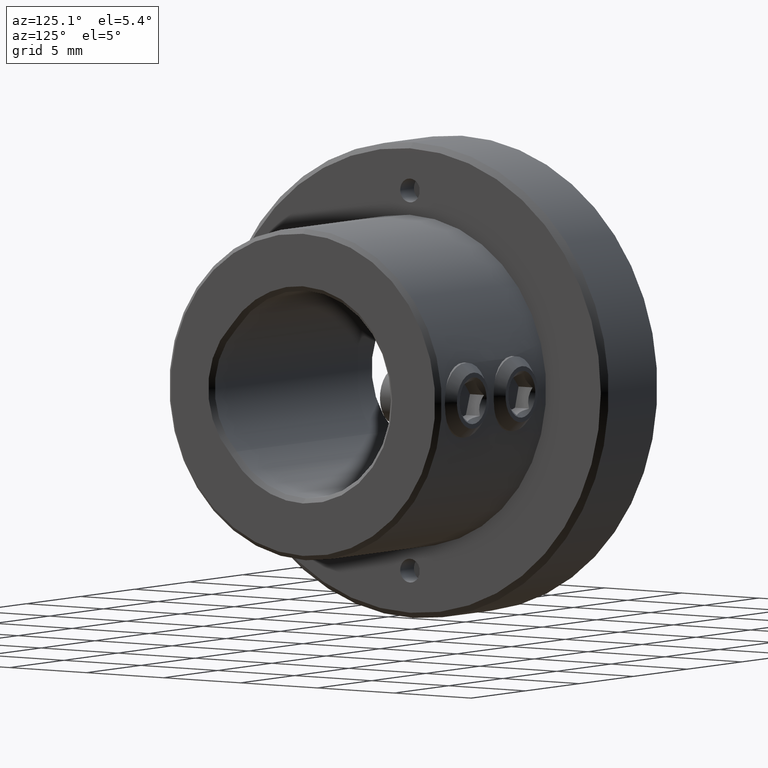
[diagram: clean part render]
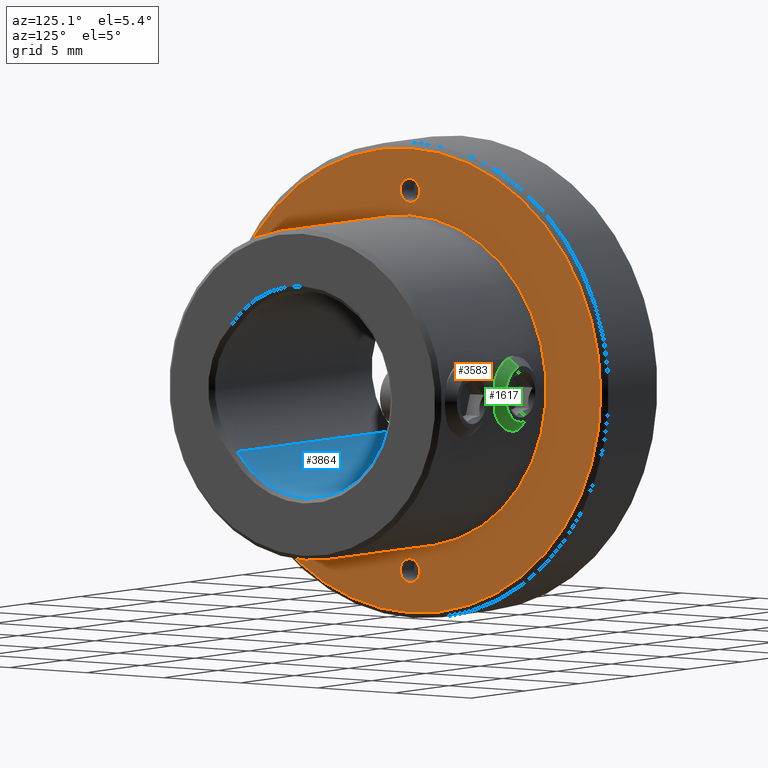
[diagram: same view with three faces highlighted in distinct colors, each labeled with its STEP entity id]
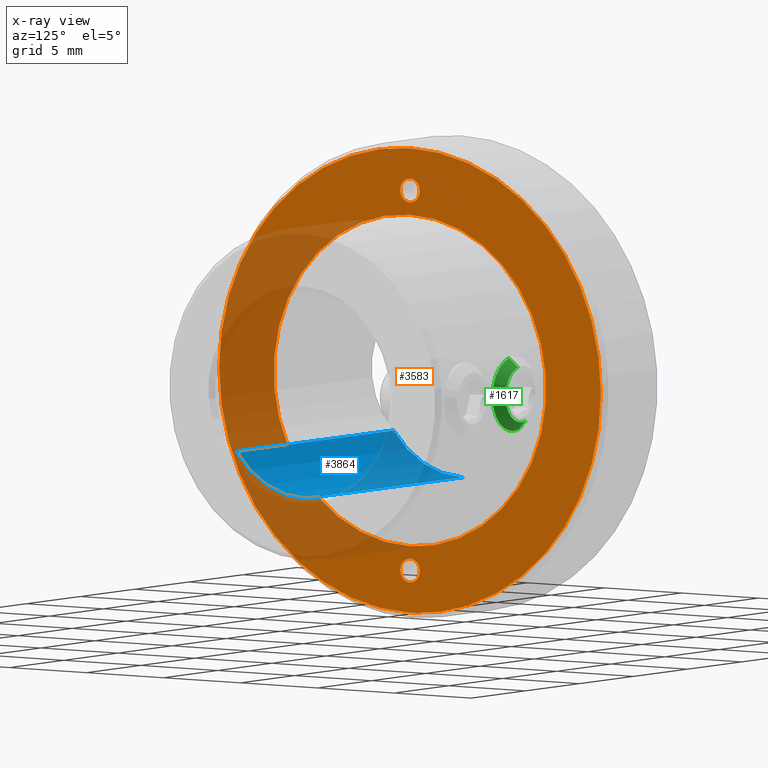
[diagram: x-ray of the same camera — body ghosted, the three highlighted faces saturated]
A machine part, auxiliary view with three faces highlighted in distinct colors.
The next image is the same camera in x-ray (body ghosted, the three faces saturated) — at least one of them is partly hidden behind the body in this view.
Their STEP definitions:

[orange] entity #3583 — the highlighted planar face has unit normal (1, 0, 0).
#24 = FACE_BOUND ( 'NONE', #1247, .T. ) ;
#126 = EDGE_CURVE ( 'NONE', #4250, #1879, #2039, .T. ) ;
#326 = FACE_BOUND ( 'NONE', #1625, .T. ) ;
#359 = CIRCLE ( 'NONE', #3192, 8.850000000000001421 ) ;
#371 = VERTEX_POINT ( 'NONE', #1809 ) ;
#511 = CARTESIAN_POINT ( 'NONE',  ( 5.099999999999999645, -1.243016501134563686E-15, 9.515000000000000568 ) ) ;
#529 = CARTESIAN_POINT ( 'NONE',  ( 5.099999999999999645, -1.243016501134563686E-15, -10.15000000000000036 ) ) ;
#573 = DIRECTION ( 'NONE',  ( 1.000000000000000000, 0.000000000000000000, 0.000000000000000000 ) ) ;
#669 = EDGE_CURVE ( 'NONE', #1879, #4250, #2381, .T. ) ;
#729 = DIRECTION ( 'NONE',  ( 0.000000000000000000, 0.000000000000000000, -1.000000000000000000 ) ) ;
#742 = ORIENTED_EDGE ( 'NONE', *, *, #854, .F. ) ;
#765 = DIRECTION ( 'NONE',  ( 1.000000000000000000, 0.000000000000000000, 0.000000000000000000 ) ) ;
#770 = FACE_BOUND ( 'NONE', #3748, .T. ) ;
#813 = DIRECTION ( 'NONE',  ( 0.000000000000000000, 0.000000000000000000, -1.000000000000000000 ) ) ;
#854 = EDGE_CURVE ( 'NONE', #4957, #371, #4730, .T. ) ;
#945 = EDGE_CURVE ( 'NONE', #2905, #1751, #1800, .T. ) ;
#972 = EDGE_CURVE ( 'NONE', #1751, #2905, #359, .T. ) ;
#980 = DIRECTION ( 'NONE',  ( 0.000000000000000000, 0.000000000000000000, -1.000000000000000000 ) ) ;
#1138 = DIRECTION ( 'NONE',  ( 1.000000000000000000, 0.000000000000000000, 0.000000000000000000 ) ) ;
#1172 = DIRECTION ( 'NONE',  ( 0.000000000000000000, 0.000000000000000000, -1.000000000000000000 ) ) ;
#1226 = EDGE_CURVE ( 'NONE', #2494, #3503, #4880, .T. ) ;
#1241 = CIRCLE ( 'NONE', #4009, 0.6350000000000001199 ) ;
#1244 = CARTESIAN_POINT ( 'NONE',  ( 5.099999999999999645, -1.243016501134563686E-15, 10.15000000000000036 ) ) ;
#1247 = EDGE_LOOP ( 'NONE', ( #3447, #2083 ) ) ;
#1279 = CARTESIAN_POINT ( 'NONE',  ( 5.099999999999999645, 0.000000000000000000, 12.40000000000000391 ) ) ;
#1434 = CARTESIAN_POINT ( 'NONE',  ( 5.100000000000000533, 0.000000000000000000, 0.000000000000000000 ) ) ;
#1552 = CARTESIAN_POINT ( 'NONE',  ( 5.099999999999999645, 0.000000000000000000, 0.000000000000000000 ) ) ;
#1563 = AXIS2_PLACEMENT_3D ( 'NONE', #2634, #1138, #2252 ) ;
#1625 = EDGE_LOOP ( 'NONE', ( #742, #4729 ) ) ;
#1751 = VERTEX_POINT ( 'NONE', #3551 ) ;
#1800 = CIRCLE ( 'NONE', #2212, 8.850000000000001421 ) ;
#1809 = CARTESIAN_POINT ( 'NONE',  ( 5.099999999999999645, -1.165251429388706647E-15, 10.78500000000000192 ) ) ;
#1810 = DIRECTION ( 'NONE',  ( -1.000000000000000000, -0.000000000000000000, -0.000000000000000000 ) ) ;
#1827 = CIRCLE ( 'NONE', #2485, 0.6350000000000001199 ) ;
#1879 = VERTEX_POINT ( 'NONE', #1279 ) ;
#1999 = EDGE_CURVE ( 'NONE', #3503, #2494, #1827, .T. ) ;
#2039 = CIRCLE ( 'NONE', #3834, 12.40000000000000391 ) ;
#2083 = ORIENTED_EDGE ( 'NONE', *, *, #1999, .F. ) ;
#2212 = AXIS2_PLACEMENT_3D ( 'NONE', #1434, #3754, #980 ) ;
#2252 = DIRECTION ( 'NONE',  ( 0.000000000000000000, 0.000000000000000000, -1.000000000000000000 ) ) ;
#2270 = DIRECTION ( 'NONE',  ( 1.000000000000000000, 0.000000000000000000, 0.000000000000000000 ) ) ;
#2318 = DIRECTION ( 'NONE',  ( 1.000000000000000000, 0.000000000000000000, 0.000000000000000000 ) ) ;
#2381 = CIRCLE ( 'NONE', #3762, 12.40000000000000391 ) ;
#2485 = AXIS2_PLACEMENT_3D ( 'NONE', #529, #2523, #2926 ) ;
#2494 = VERTEX_POINT ( 'NONE', #3318 ) ;
#2503 = CARTESIAN_POINT ( 'NONE',  ( 5.099999999999999645, 1.536931732929928397E-15, -12.40000000000000391 ) ) ;
#2523 = DIRECTION ( 'NONE',  ( 1.000000000000000000, 0.000000000000000000, 0.000000000000000000 ) ) ;
#2634 = CARTESIAN_POINT ( 'NONE',  ( 5.099999999999999645, -1.243016501134563686E-15, 10.15000000000000036 ) ) ;
#2716 = CARTESIAN_POINT ( 'NONE',  ( 5.099999999999999645, 0.000000000000000000, 0.000000000000000000 ) ) ;
#2879 = CARTESIAN_POINT ( 'NONE',  ( 5.099999999999999645, 0.000000000000000000, 0.000000000000000000 ) ) ;
#2905 = VERTEX_POINT ( 'NONE', #3182 ) ;
#2926 = DIRECTION ( 'NONE',  ( 0.000000000000000000, 0.000000000000000000, -1.000000000000000000 ) ) ;
#2982 = DIRECTION ( 'NONE',  ( 0.000000000000000000, 0.000000000000000000, -1.000000000000000000 ) ) ;
#3022 = AXIS2_PLACEMENT_3D ( 'NONE', #1552, #2318, #3877 ) ;
#3050 = EDGE_LOOP ( 'NONE', ( #4450, #4299 ) ) ;
#3082 = FACE_OUTER_BOUND ( 'NONE', #3050, .T. ) ;
#3182 = CARTESIAN_POINT ( 'NONE',  ( 5.100000000000000533, 0.000000000000000000, -8.850000000000001421 ) ) ;
#3192 = AXIS2_PLACEMENT_3D ( 'NONE', #4870, #1810, #2982 ) ;
#3214 = EDGE_CURVE ( 'NONE', #371, #4957, #1241, .T. ) ;
#3284 = ORIENTED_EDGE ( 'NONE', *, *, #972, .T. ) ;
#3318 = CARTESIAN_POINT ( 'NONE',  ( 5.099999999999999645, -1.243016501134563686E-15, -10.78500000000000192 ) ) ;
#3346 = AXIS2_PLACEMENT_3D ( 'NONE', #4255, #2270, #729 ) ;
#3423 = PLANE ( 'NONE',  #3022 ) ;
#3447 = ORIENTED_EDGE ( 'NONE', *, *, #1226, .F. ) ;
#3503 = VERTEX_POINT ( 'NONE', #3802 ) ;
#3551 = CARTESIAN_POINT ( 'NONE',  ( 5.100000000000000533, 1.083812417245407876E-15, 8.850000000000001421 ) ) ;
#3583 = ADVANCED_FACE ( 'NONE', ( #24, #326, #3082, #770 ), #3423, .T. ) ;
#3748 = EDGE_LOOP ( 'NONE', ( #4003, #3284 ) ) ;
#3754 = DIRECTION ( 'NONE',  ( -1.000000000000000000, -0.000000000000000000, -0.000000000000000000 ) ) ;
#3762 = AXIS2_PLACEMENT_3D ( 'NONE', #2879, #573, #4005 ) ;
#3802 = CARTESIAN_POINT ( 'NONE',  ( 5.099999999999999645, -1.165251429388706647E-15, -9.515000000000000568 ) ) ;
#3834 = AXIS2_PLACEMENT_3D ( 'NONE', #2716, #765, #1172 ) ;
#3877 = DIRECTION ( 'NONE',  ( 0.000000000000000000, 0.000000000000000000, -1.000000000000000000 ) ) ;
#4003 = ORIENTED_EDGE ( 'NONE', *, *, #945, .T. ) ;
#4005 = DIRECTION ( 'NONE',  ( 0.000000000000000000, 0.000000000000000000, -1.000000000000000000 ) ) ;
#4009 = AXIS2_PLACEMENT_3D ( 'NONE', #1244, #4346, #813 ) ;
#4250 = VERTEX_POINT ( 'NONE', #2503 ) ;
#4255 = CARTESIAN_POINT ( 'NONE',  ( 5.099999999999999645, -1.243016501134563686E-15, -10.15000000000000036 ) ) ;
#4299 = ORIENTED_EDGE ( 'NONE', *, *, #126, .T. ) ;
#4346 = DIRECTION ( 'NONE',  ( 1.000000000000000000, 0.000000000000000000, 0.000000000000000000 ) ) ;
#4450 = ORIENTED_EDGE ( 'NONE', *, *, #669, .T. ) ;
#4729 = ORIENTED_EDGE ( 'NONE', *, *, #3214, .F. ) ;
#4730 = CIRCLE ( 'NONE', #1563, 0.6350000000000001199 ) ;
#4870 = CARTESIAN_POINT ( 'NONE',  ( 5.100000000000000533, 0.000000000000000000, 0.000000000000000000 ) ) ;
#4880 = CIRCLE ( 'NONE', #3346, 0.6350000000000001199 ) ;
#4957 = VERTEX_POINT ( 'NONE', #511 ) ;

[blue] entity #3864 — the highlighted cylindrical surface (partial cylindrical patch) has radius 5.55 mm, axis along (-1, -0, -0).
#50 = LINE ( 'NONE', #1201, #3494 ) ;
#282 = CARTESIAN_POINT ( 'NONE',  ( 7.500000000000000000, -4.468750000000002665, -3.291317887640144324 ) ) ;
#351 = DIRECTION ( 'NONE',  ( -1.000000000000000000, -0.000000000000000000, -0.000000000000000000 ) ) ;
#579 = LINE ( 'NONE', #282, #4738 ) ;
#603 = AXIS2_PLACEMENT_3D ( 'NONE', #1546, #1070, #720 ) ;
#675 = DIRECTION ( 'NONE',  ( -1.000000000000000000, 0.000000000000000000, 0.000000000000000000 ) ) ;
#720 = DIRECTION ( 'NONE',  ( 0.000000000000000000, 0.000000000000000000, -1.000000000000000000 ) ) ;
#760 = CIRCLE ( 'NONE', #603, 5.549999999999999822 ) ;
#905 = CARTESIAN_POINT ( 'NONE',  ( 0.2500000000000071609, -4.468750000000002665, -3.291317887640144324 ) ) ;
#1070 = DIRECTION ( 'NONE',  ( 1.000000000000000000, -0.000000000000000000, -0.000000000000000000 ) ) ;
#1201 = CARTESIAN_POINT ( 'NONE',  ( 15.00000000000000000, 6.796789735267810781E-16, -5.549999999999999822 ) ) ;
#1321 = ORIENTED_EDGE ( 'NONE', *, *, #2493, .T. ) ;
#1546 = CARTESIAN_POINT ( 'NONE',  ( 14.75000000000000000, 0.000000000000000000, 0.000000000000000000 ) ) ;
#2034 = VERTEX_POINT ( 'NONE', #3651 ) ;
#2091 = VERTEX_POINT ( 'NONE', #3626 ) ;
#2130 = AXIS2_PLACEMENT_3D ( 'NONE', #4783, #4329, #3954 ) ;
#2161 = ORIENTED_EDGE ( 'NONE', *, *, #2803, .T. ) ;
#2250 = VERTEX_POINT ( 'NONE', #4650 ) ;
#2396 = CYLINDRICAL_SURFACE ( 'NONE', #2130, 5.549999999999999822 ) ;
#2493 = EDGE_CURVE ( 'NONE', #2091, #3955, #3735, .T. ) ;
#2803 = EDGE_CURVE ( 'NONE', #2250, #2091, #50, .T. ) ;
#3003 = DIRECTION ( 'NONE',  ( 0.000000000000000000, 0.000000000000000000, -1.000000000000000000 ) ) ;
#3313 = EDGE_LOOP ( 'NONE', ( #3471, #2161, #1321, #4805 ) ) ;
#3370 = CARTESIAN_POINT ( 'NONE',  ( 0.2500000000000071609, 0.000000000000000000, 0.000000000000000000 ) ) ;
#3371 = DIRECTION ( 'NONE',  ( 1.000000000000000000, 0.000000000000000000, 0.000000000000000000 ) ) ;
#3471 = ORIENTED_EDGE ( 'NONE', *, *, #4081, .T. ) ;
#3494 = VECTOR ( 'NONE', #351, 1000.000000000000000 ) ;
#3622 = FACE_OUTER_BOUND ( 'NONE', #3313, .T. ) ;
#3626 = CARTESIAN_POINT ( 'NONE',  ( 0.2500000000000071609, 6.796789735267810781E-16, -5.549999999999999822 ) ) ;
#3651 = CARTESIAN_POINT ( 'NONE',  ( 14.75000000000000000, -4.468750000000002665, -3.291317887640144324 ) ) ;
#3735 = CIRCLE ( 'NONE', #4622, 5.549999999999999822 ) ;
#3864 = ADVANCED_FACE ( 'NONE', ( #3622 ), #2396, .F. ) ;
#3954 = DIRECTION ( 'NONE',  ( 0.000000000000000000, 0.000000000000000000, 1.000000000000000000 ) ) ;
#3955 = VERTEX_POINT ( 'NONE', #905 ) ;
#4081 = EDGE_CURVE ( 'NONE', #2034, #2250, #760, .T. ) ;
#4303 = EDGE_CURVE ( 'NONE', #3955, #2034, #579, .T. ) ;
#4329 = DIRECTION ( 'NONE',  ( -1.000000000000000000, -0.000000000000000000, -0.000000000000000000 ) ) ;
#4622 = AXIS2_PLACEMENT_3D ( 'NONE', #3370, #675, #3003 ) ;
#4650 = CARTESIAN_POINT ( 'NONE',  ( 14.75000000000000000, 6.796789735267810781E-16, -5.549999999999999822 ) ) ;
#4738 = VECTOR ( 'NONE', #3371, 1000.000000000000000 ) ;
#4783 = CARTESIAN_POINT ( 'NONE',  ( 15.00000000000000000, 0.000000000000000000, 0.000000000000000000 ) ) ;
#4805 = ORIENTED_EDGE ( 'NONE', *, *, #4303, .T. ) ;

[green] entity #1617 — the highlighted conical surface has half-angle 45 deg.
#101 = CARTESIAN_POINT ( 'NONE',  ( 7.651233673994443762, 9.303905784946758573, -1.458890691534014517 ) ) ;
#151 = DIRECTION ( 'NONE',  ( 0.2325108840037026225, 0.000000000000000000, 0.9725937943560079013 ) ) ;
#166 = CIRCLE ( 'NONE', #2016, 2.000000000000000000 ) ;
#288 = VECTOR ( 'NONE', #911, 1000.000000000000114 ) ;
#344 = ORIENTED_EDGE ( 'NONE', *, *, #4952, .F. ) ;
#451 = VERTEX_POINT ( 'NONE', #101 ) ;
#454 = DIRECTION ( 'NONE',  ( 5.083153145339589237E-16, -1.000000000000000000, -1.738507377522522658E-17 ) ) ;
#863 = CARTESIAN_POINT ( 'NONE',  ( 7.651233673994443762, 9.303905784946758573, -1.458890691534014294 ) ) ;
#911 = DIRECTION ( 'NONE',  ( -0.1644100227786965962, -0.7071067811865481278, -0.6877276673290871889 ) ) ;
#1068 = VERTEX_POINT ( 'NONE', #2605 ) ;
#1263 = DIRECTION ( 'NONE',  ( 0.2325108840037027058, 0.000000000000000000, 0.9725937943560081234 ) ) ;
#1322 = AXIS2_PLACEMENT_3D ( 'NONE', #3233, #3159, #151 ) ;
#1453 = CARTESIAN_POINT ( 'NONE',  ( 8.348766326005552685, 9.303905784946758573, 1.458890691534014072 ) ) ;
#1464 = CONICAL_SURFACE ( 'NONE', #3587, 1.500000000000002442, 0.7853981633974473908 ) ;
#1617 = ADVANCED_FACE ( 'NONE', ( #3908 ), #1464, .T. ) ;
#1642 = DIRECTION ( 'NONE',  ( 5.083153145339589237E-16, -1.000000000000000000, -1.738507377522522658E-17 ) ) ;
#1981 = LINE ( 'NONE', #2793, #4165 ) ;
#2002 = CARTESIAN_POINT ( 'NONE',  ( 7.999999999999998224, 8.803905784946758573, 2.213053331873569455E-17 ) ) ;
#2016 = AXIS2_PLACEMENT_3D ( 'NONE', #2002, #1642, #1263 ) ;
#2191 = ORIENTED_EDGE ( 'NONE', *, *, #3742, .F. ) ;
#2605 = CARTESIAN_POINT ( 'NONE',  ( 7.534978231992592868, 8.803905784946758573, -1.945187588712015803 ) ) ;
#2695 = EDGE_LOOP ( 'NONE', ( #2191, #2705, #344, #3545 ) ) ;
#2705 = ORIENTED_EDGE ( 'NONE', *, *, #3146, .T. ) ;
#2793 = CARTESIAN_POINT ( 'NONE',  ( 8.348766326005552685, 9.303905784946758573, 1.458890691534014294 ) ) ;
#3146 = EDGE_CURVE ( 'NONE', #3449, #3230, #1981, .T. ) ;
#3159 = DIRECTION ( 'NONE',  ( -5.083153145339589237E-16, 1.000000000000000000, 1.738507377522522658E-17 ) ) ;
#3230 = VERTEX_POINT ( 'NONE', #4322 ) ;
#3233 = CARTESIAN_POINT ( 'NONE',  ( 7.999999999999998224, 9.303905784946758573, 3.082307020634828473E-17 ) ) ;
#3271 = EDGE_CURVE ( 'NONE', #451, #1068, #4368, .T. ) ;
#3449 = VERTEX_POINT ( 'NONE', #1453 ) ;
#3545 = ORIENTED_EDGE ( 'NONE', *, *, #3271, .F. ) ;
#3574 = CARTESIAN_POINT ( 'NONE',  ( 7.999999999999998224, 9.303905784946758573, 3.082307020634828473E-17 ) ) ;
#3587 = AXIS2_PLACEMENT_3D ( 'NONE', #3574, #454, #4335 ) ;
#3742 = EDGE_CURVE ( 'NONE', #3449, #451, #4410, .T. ) ;
#3908 = FACE_OUTER_BOUND ( 'NONE', #2695, .T. ) ;
#3970 = DIRECTION ( 'NONE',  ( 0.1644100227786973734, -0.7071067811865479058, 0.6877276673290871889 ) ) ;
#4165 = VECTOR ( 'NONE', #3970, 1000.000000000000114 ) ;
#4322 = CARTESIAN_POINT ( 'NONE',  ( 8.465021768007403580, 8.803905784946758573, 1.945187588712015803 ) ) ;
#4335 = DIRECTION ( 'NONE',  ( -0.2325108840037026225, 0.000000000000000000, -0.9725937943560079013 ) ) ;
#4368 = LINE ( 'NONE', #863, #288 ) ;
#4410 = CIRCLE ( 'NONE', #1322, 1.500000000000002442 ) ;
#4952 = EDGE_CURVE ( 'NONE', #1068, #3230, #166, .T. ) ;